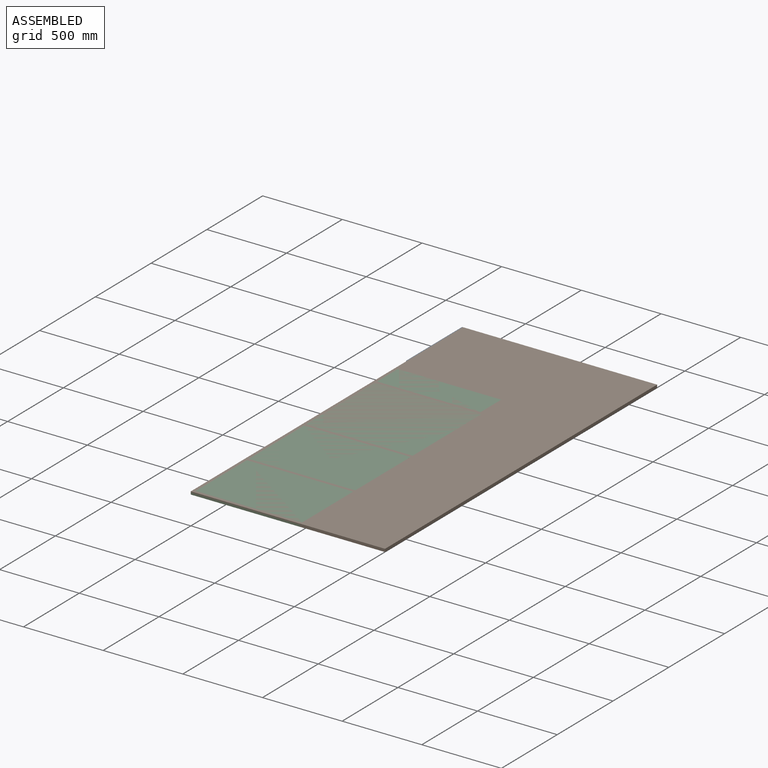
[diagram: assembled view]
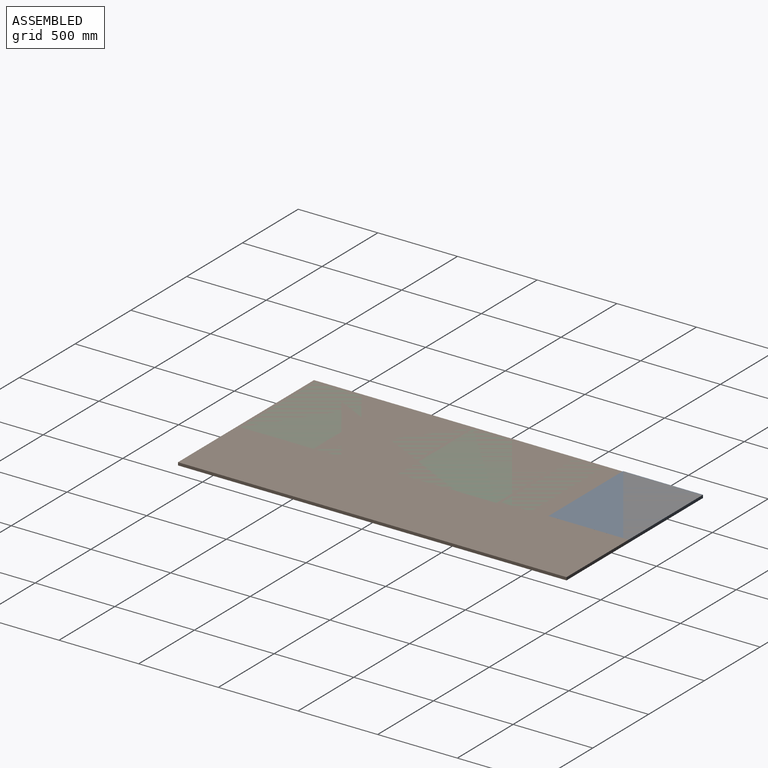
[diagram: assembled view, second angle]
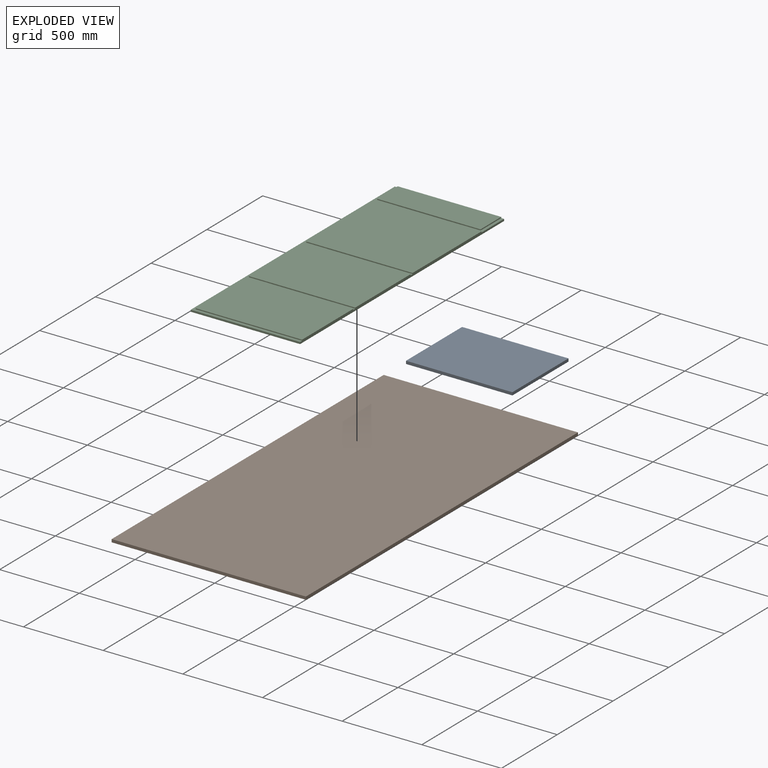
[diagram: exploded view]
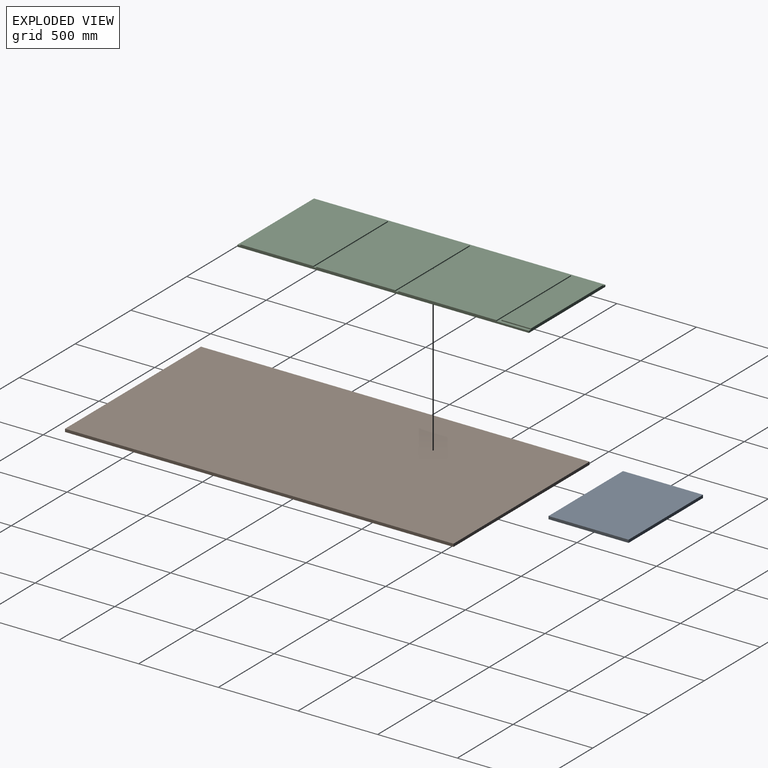
[diagram: exploded view, second angle]
ASSEMBLY  parts=3 mates=2
PART A: 6 faces, bbox 502.4x667.5x18.3 mm
  f0: plane 667.54x502.44mm, normal (0,0,-1), area 335403.2mm2, adj f1,f2,f4,f5
  f1: plane 502.44x18.26mm, normal (0,-1,0), area 9172.7mm2, adj f0,f3,f4,f5
  f2: plane 502.44x18.26mm, normal (0,1,0), area 9172.7mm2, adj f0,f3,f4,f5
  f3: plane 667.54x502.44mm, normal (0,0,1), area 335403.2mm2, adj f1,f2,f4,f5
  f4: plane 667.54x18.26mm, normal (-1,0,0), area 12186.8mm2, adj f0,f1,f2,f3
  f5: plane 667.54x18.26mm, normal (1,0,0), area 12186.8mm2, adj f0,f1,f2,f3
PART B: 6 faces, bbox 1219.2x2438.4x18.3 mm
  f0: plane 2438.4x18.26mm, normal (1,0,0), area 44516mm2, adj f1,f3,f4,f5
  f1: plane 1219.2x18.26mm, normal (0,1,0), area 22258mm2, adj f0,f2,f4,f5
  f2: plane 2438.4x18.26mm, normal (-1,0,0), area 44516mm2, adj f1,f3,f4,f5
  f3: plane 1219.2x18.26mm, normal (0,-1,0), area 22258mm2, adj f0,f2,f4,f5
  f4: plane 2438.4x1219.2mm, normal (0,0,1), area 2972897.3mm2, adj f0,f1,f2,f3
  f5: plane 2438.4x1219.2mm, normal (0,0,-1), area 2972897.3mm2, adj f0,f1,f2,f3
PART C: 22 faces, bbox 1828.8x685.8x18.3 mm
  f0: plane 1828.8x11.91mm, normal (0,-1,0), area 21774.1mm2, adj f1,f3,f8,f21
  f1: plane 685.8x11.91mm, normal (1,0,0), area 8165.3mm2, adj f0,f2,f8,f21
  f2: plane 1828.8x18.26mm, normal (0,1,0), area 31748.9mm2, adj f1,f3,f4,f5,f6,f8,f11,f13
  f3: plane 685.8x18.26mm, normal (-1,0,0), area 12288.3mm2, adj f0,f2,f7,f8,f10,f20,f21
  f4: plane 667.54x457.99mm, normal (0,0,1), area 305730.9mm2, adj f2,f11,f12,f13
  f5: plane 667.54x496.09mm, normal (0,0,1), area 331164.3mm2, adj f2,f14,f15,f16
  f6: plane 667.54x616.74mm, normal (0,0,1), area 411703.4mm2, adj f2,f17,f18,f19
  f7: plane 649.29x184.94mm, normal (0,0,1), area 120081.7mm2, adj f3,f9,f10,f20
  f8: plane 1828.8x685.8mm, normal (0,0,-1), area 1254191mm2, adj f0,f1,f2,f3
  f9: plane 649.29x6.35mm, normal (1,0,0), area 4123mm2, adj f7,f10,f20,f21
  f10: plane 184.94x6.35mm, normal (0,-1,0), area 1174.4mm2, adj f3,f7,f9,f21
  f11: plane 667.54x6.35mm, normal (1,0,0), area 4238.9mm2, adj f2,f4,f12,f21
  f12: plane 457.99x6.35mm, normal (0,-1,0), area 2908.3mm2, adj f4,f11,f13,f21
  f13: plane 667.54x6.35mm, normal (-1,0,0), area 4238.9mm2, adj f2,f4,f12,f21
  f14: plane 667.54x6.35mm, normal (1,0,0), area 4238.9mm2, adj f2,f5,f15,f21
  f15: plane 496.09x6.35mm, normal (0,-1,0), area 3150.2mm2, adj f5,f14,f16,f21
  f16: plane 667.54x6.35mm, normal (-1,0,0), area 4238.9mm2, adj f2,f5,f15,f21
  f17: plane 667.54x6.35mm, normal (1,0,0), area 4238.9mm2, adj f2,f6,f18,f21
  f18: plane 616.74x6.35mm, normal (0,-1,0), area 3916.3mm2, adj f6,f17,f19,f21
  f19: plane 667.54x6.35mm, normal (-1,0,0), area 4238.9mm2, adj f2,f6,f18,f21
  f20: plane 184.94x6.35mm, normal (0,1,0), area 1174.4mm2, adj f3,f7,f9,f21
  f21: plane 1828.8x685.8mm, normal (0,0,1), area 85510.8mm2, adj f0,f1,f2,f3,f9,f10,f11,f12
PLACE A rot(axis=(0,0,1),90deg) t=(338.14,2015.33,-399.26)mm
PLACE B t=(1219.2,0,0)mm
PLACE C rot(axis=(0,0,-1),90deg) t=(342.9,914.4,0)mm
MATE fastened A.f0 <-> B.f5  axis (0,0,-1) through (-4.76,2438.4,0)mm
MATE fastened C.f8 <-> B.f5  axis (0,0,-1) through (0,0,0)mm
